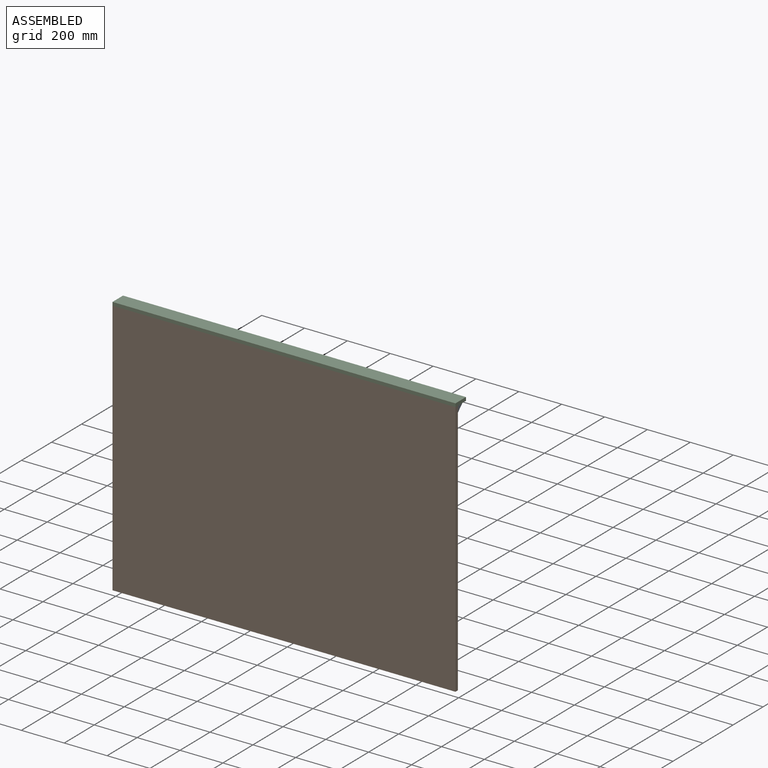
[diagram: assembled view]
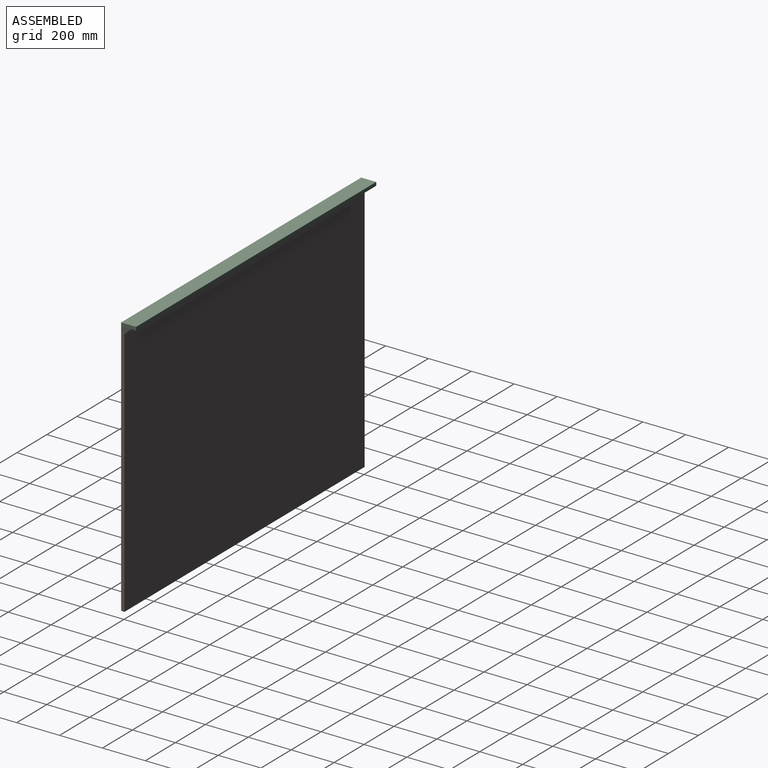
[diagram: assembled view, second angle]
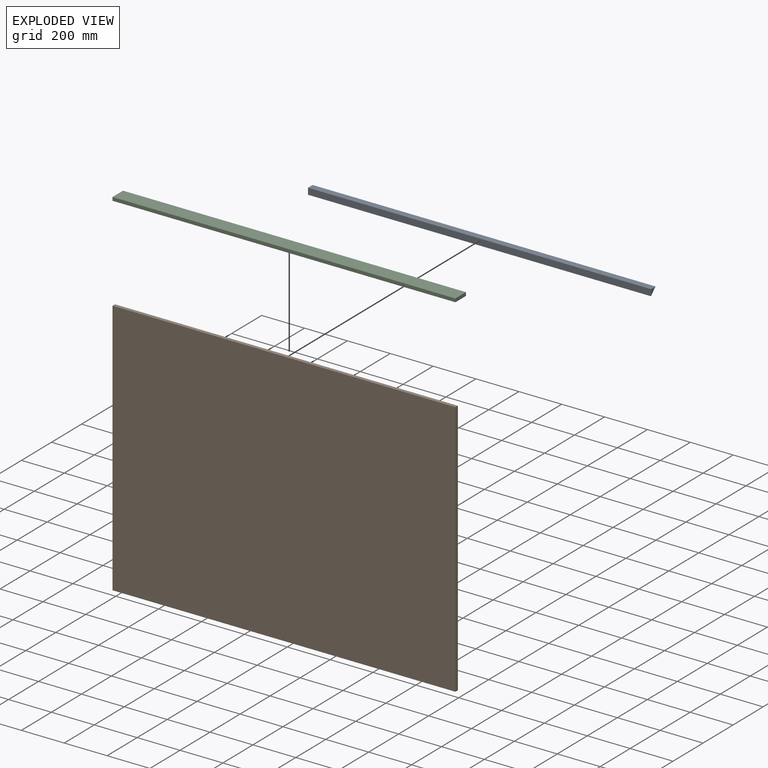
[diagram: exploded view]
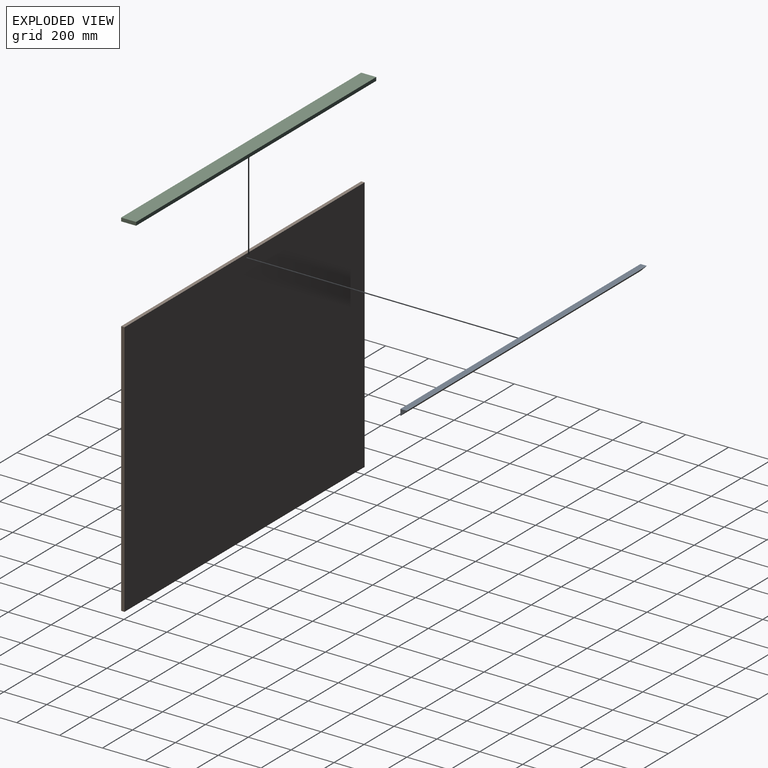
[diagram: exploded view, second angle]
ASSEMBLY  parts=3 mates=2
PART A: 5 faces, bbox 30x1600x30 mm
  f0: plane 1600x30mm, normal (-1,0,0), area 48000mm2, adj f1,f2,f3,f4
  f1: plane 1600x30mm, normal (0,0,-1), area 48000mm2, adj f0,f2,f3,f4
  f2: plane 1600x30mm, normal (0.71,0,0.71), area 67882.3mm2, adj f0,f1,f3,f4
  f3: plane 30x30mm, normal (0,-1,0), area 450mm2, adj f0,f1,f2
  f4: plane 30x30mm, normal (0,1,0), area 450mm2, adj f0,f1,f2
PART B: 6 faces, bbox 1600x16x1200 mm
  f0: plane 1600x16mm, normal (0,0,1), area 25600mm2, adj f1,f3,f4,f5
  f1: plane 1200x16mm, normal (-1,0,0), area 19200mm2, adj f0,f2,f4,f5
  f2: plane 1600x16mm, normal (0,0,-1), area 25600mm2, adj f1,f3,f4,f5
  f3: plane 1200x16mm, normal (1,0,0), area 19200mm2, adj f0,f2,f4,f5
  f4: plane 1600x1200mm, normal (0,-1,0), area 1920000mm2, adj f0,f1,f2,f3
  f5: plane 1600x1200mm, normal (0,1,0), area 1920000mm2, adj f0,f1,f2,f3
PART C: 6 faces, bbox 1600x16x70 mm
  f0: plane 1600x16mm, normal (0,0,1), area 25600mm2, adj f1,f3,f4,f5
  f1: plane 70x16mm, normal (-1,0,0), area 1120mm2, adj f0,f2,f4,f5
  f2: plane 1600x16mm, normal (0,0,-1), area 25600mm2, adj f1,f3,f4,f5
  f3: plane 70x16mm, normal (1,0,0), area 1120mm2, adj f0,f2,f4,f5
  f4: plane 1600x70mm, normal (0,-1,0), area 112000mm2, adj f0,f1,f2,f3
  f5: plane 1600x70mm, normal (0,1,0), area 112000mm2, adj f0,f1,f2,f3
PLACE A rot(axis=(0.71,0.71,0),180deg) t=(796.11,15.27,606.66)mm
PLACE B at identity
PLACE C rot(axis=(0,0.71,0.71),180deg) t=(1.36,743.34,644.97)mm
MATE fastened A.f0 <-> B.f5  axis (0,-1,0) through (-3.89,0,628.97)mm
MATE fastened C.f4 <-> B.f0  axis (0,0,-1) through (-3.89,-16,628.97)mm
